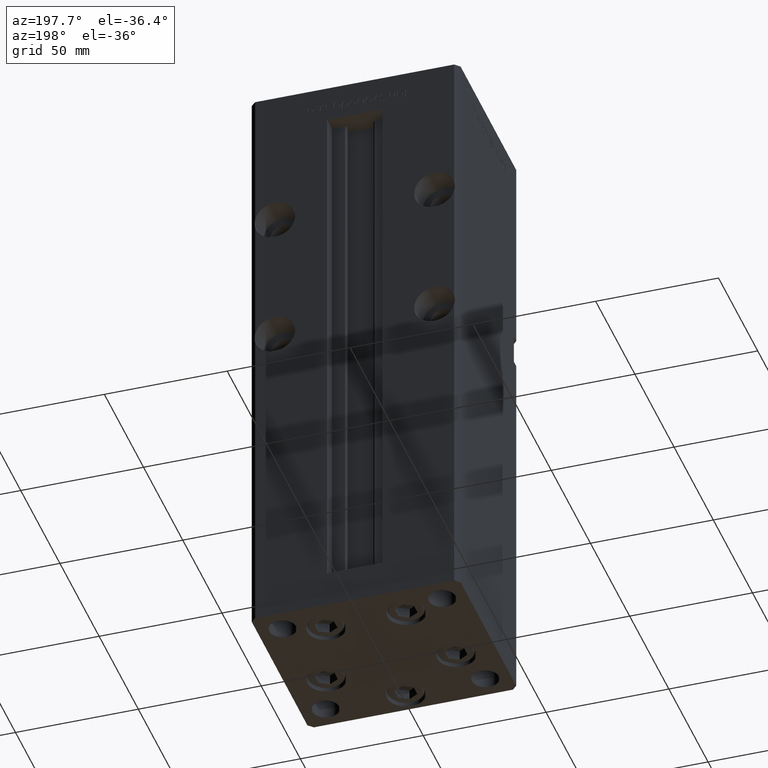
[diagram: clean part render]
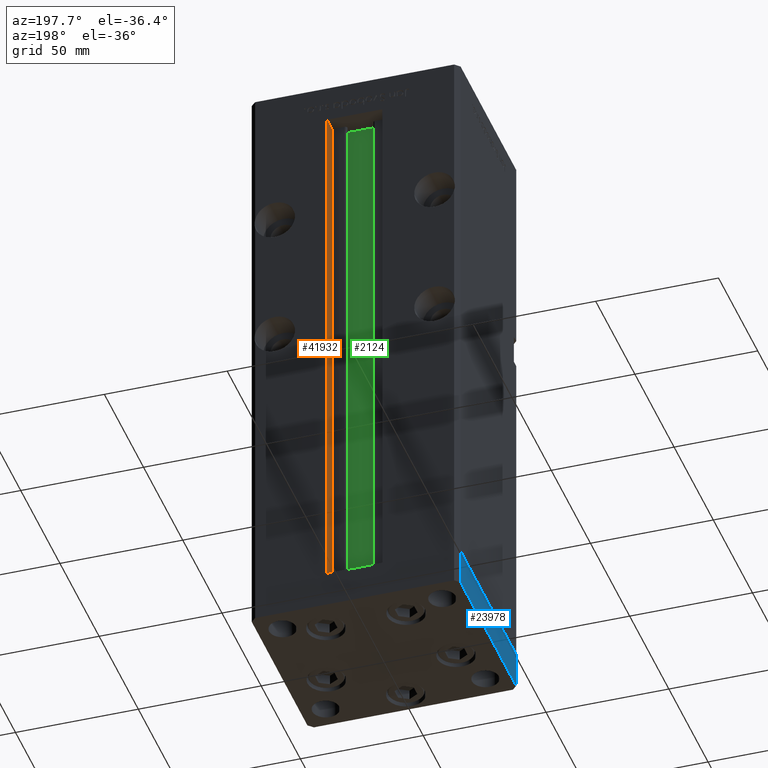
[diagram: same view with three faces highlighted in distinct colors, each labeled with its STEP entity id]
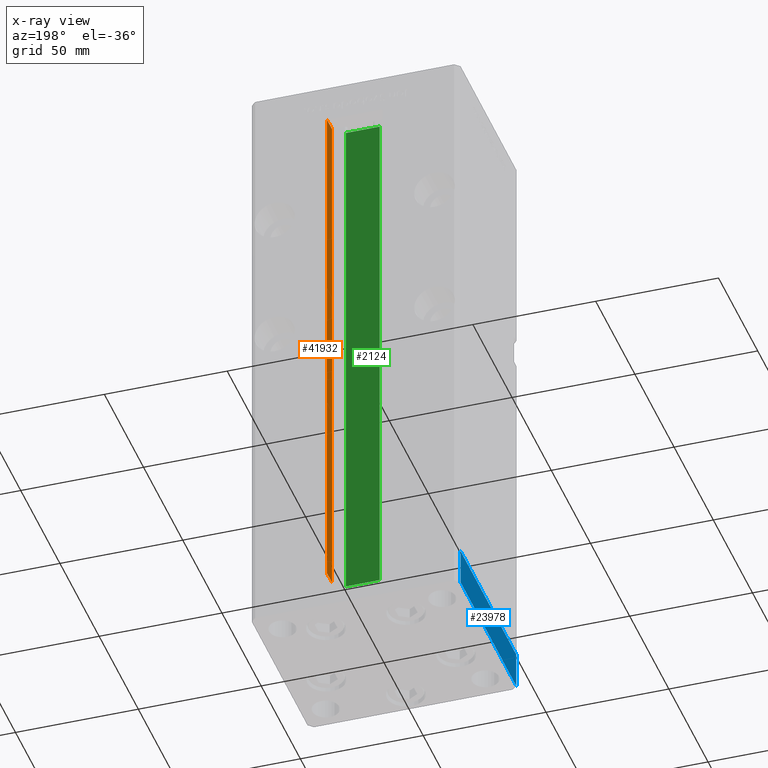
[diagram: x-ray of the same camera — body ghosted, the three highlighted faces saturated]
A machine part, auxiliary view with three faces highlighted in distinct colors.
The next image is the same camera in x-ray (body ghosted, the three faces saturated) — at least one of them is partly hidden behind the body in this view.
Their STEP definitions:

[orange] entity #41932 — the highlighted planar face has unit normal (1, 0, 0).
#1655 = ORIENTED_EDGE ( 'NONE', *, *, #25145, .F. ) ;
#2449 = LINE ( 'NONE', #18824, #26609 ) ;
#2596 = CARTESIAN_POINT ( 'NONE',  ( 11.24999999999999822, 31.00000000000000000, 0.000000000000000000 ) ) ;
#3232 = DIRECTION ( 'NONE',  ( 0.000000000000000000, 0.000000000000000000, -1.000000000000000000 ) ) ;
#8670 = VECTOR ( 'NONE', #52286, 1000.000000000000000 ) ;
#9684 = ORIENTED_EDGE ( 'NONE', *, *, #10732, .F. ) ;
#10732 = EDGE_CURVE ( 'NONE', #36285, #30588, #30585, .T. ) ;
#14245 = VECTOR ( 'NONE', #45454, 1000.000000000000000 ) ;
#14348 = CARTESIAN_POINT ( 'NONE',  ( 11.24999999999999112, 37.50000000000000000, 218.5000000000000000 ) ) ;
#14792 = DIRECTION ( 'NONE',  ( 0.000000000000000000, 1.000000000000000000, 0.000000000000000000 ) ) ;
#15836 = DIRECTION ( 'NONE',  ( 1.000000000000000000, -0.000000000000000000, 0.000000000000000000 ) ) ;
#16028 = ORIENTED_EDGE ( 'NONE', *, *, #30733, .F. ) ;
#16627 = CARTESIAN_POINT ( 'NONE',  ( 11.24999999999999822, 31.00000000000000000, 0.000000000000000000 ) ) ;
#17030 = CARTESIAN_POINT ( 'NONE',  ( 11.24999999999999822, 31.00000000000000000, 218.5000000000000000 ) ) ;
#18824 = CARTESIAN_POINT ( 'NONE',  ( 11.24999999999999822, 31.00000000000000000, 0.000000000000000000 ) ) ;
#19440 = CARTESIAN_POINT ( 'NONE',  ( 11.24999999999999822, 37.50000000000000000, 0.000000000000000000 ) ) ;
#22471 = DIRECTION ( 'NONE',  ( -0.000000000000000000, -0.000000000000000000, 1.000000000000000000 ) ) ;
#25145 = EDGE_CURVE ( 'NONE', #33171, #36285, #2449, .T. ) ;
#26609 = VECTOR ( 'NONE', #14792, 1000.000000000000000 ) ;
#28303 = CARTESIAN_POINT ( 'NONE',  ( 11.24999999999999822, 0.000000000000000000, 218.5000000000000000 ) ) ;
#30585 = LINE ( 'NONE', #38660, #14245 ) ;
#30588 = VERTEX_POINT ( 'NONE', #14348 ) ;
#30733 = EDGE_CURVE ( 'NONE', #30588, #32901, #44190, .T. ) ;
#31998 = CARTESIAN_POINT ( 'NONE',  ( 11.24999999999999822, 31.00000000000000000, 0.000000000000000000 ) ) ;
#32901 = VERTEX_POINT ( 'NONE', #17030 ) ;
#33171 = VERTEX_POINT ( 'NONE', #16627 ) ;
#36285 = VERTEX_POINT ( 'NONE', #19440 ) ;
#38225 = VECTOR ( 'NONE', #22471, 1000.000000000000000 ) ;
#38660 = CARTESIAN_POINT ( 'NONE',  ( 11.24999999999999822, 37.50000000000000000, 0.000000000000000000 ) ) ;
#41637 = AXIS2_PLACEMENT_3D ( 'NONE', #31998, #15836, #3232 ) ;
#41932 = ADVANCED_FACE ( 'NONE', ( #48674 ), #48932, .F. ) ;
#42468 = EDGE_LOOP ( 'NONE', ( #9684, #1655, #49193, #16028 ) ) ;
#43725 = LINE ( 'NONE', #2596, #38225 ) ;
#44190 = LINE ( 'NONE', #28303, #8670 ) ;
#45454 = DIRECTION ( 'NONE',  ( -0.000000000000000000, -0.000000000000000000, 1.000000000000000000 ) ) ;
#48441 = EDGE_CURVE ( 'NONE', #33171, #32901, #43725, .T. ) ;
#48674 = FACE_OUTER_BOUND ( 'NONE', #42468, .T. ) ;
#48932 = PLANE ( 'NONE',  #41637 ) ;
#49193 = ORIENTED_EDGE ( 'NONE', *, *, #48441, .T. ) ;
#52286 = DIRECTION ( 'NONE',  ( -0.000000000000000000, -1.000000000000000000, 0.000000000000000000 ) ) ;

[blue] entity #23978 — the highlighted planar face has unit normal (-1, -0, 0).
#645 = LINE ( 'NONE', #21333, #19029 ) ;
#1615 = CARTESIAN_POINT ( 'NONE',  ( 42.50000000000000711, -35.50000000000000000, 0.000000000000000000 ) ) ;
#3400 = CARTESIAN_POINT ( 'NONE',  ( 42.49999999999992895, 35.50000000000000000, 0.000000000000000000 ) ) ;
#4054 = DIRECTION ( 'NONE',  ( 1.000000000000000000, 1.172770800660376741E-15, -0.000000000000000000 ) ) ;
#5462 = VERTEX_POINT ( 'NONE', #1615 ) ;
#5848 = VERTEX_POINT ( 'NONE', #3400 ) ;
#8076 = CARTESIAN_POINT ( 'NONE',  ( 42.50000000000000711, -35.50000000000000000, 0.000000000000000000 ) ) ;
#14905 = VECTOR ( 'NONE', #20999, 1000.000000000000000 ) ;
#16139 = CARTESIAN_POINT ( 'NONE',  ( 42.50000000000000711, -35.50000000000000000, -15.00000000000000000 ) ) ;
#16767 = CARTESIAN_POINT ( 'NONE',  ( 42.49999999999992895, 35.50000000000000000, -15.00000000000000000 ) ) ;
#16841 = ORIENTED_EDGE ( 'NONE', *, *, #32819, .T. ) ;
#19029 = VECTOR ( 'NONE', #25080, 1000.000000000000000 ) ;
#20543 = DIRECTION ( 'NONE',  ( 0.000000000000000000, 0.000000000000000000, 1.000000000000000000 ) ) ;
#20692 = LINE ( 'NONE', #8076, #40635 ) ;
#20865 = ORIENTED_EDGE ( 'NONE', *, *, #53186, .T. ) ;
#20999 = DIRECTION ( 'NONE',  ( 0.000000000000000000, 0.000000000000000000, 1.000000000000000000 ) ) ;
#21333 = CARTESIAN_POINT ( 'NONE',  ( 42.50000000000000711, -35.50000000000000000, -15.00000000000000000 ) ) ;
#23240 = ORIENTED_EDGE ( 'NONE', *, *, #38840, .F. ) ;
#23978 = ADVANCED_FACE ( 'NONE', ( #53020 ), #48714, .T. ) ;
#24820 = ORIENTED_EDGE ( 'NONE', *, *, #36673, .F. ) ;
#25080 = DIRECTION ( 'NONE',  ( -1.172770800660376741E-15, 1.000000000000000000, 0.000000000000000000 ) ) ;
#32819 = EDGE_CURVE ( 'NONE', #46665, #45436, #645, .T. ) ;
#33390 = LINE ( 'NONE', #38217, #14905 ) ;
#36673 = EDGE_CURVE ( 'NONE', #5462, #5848, #20692, .T. ) ;
#37769 = LINE ( 'NONE', #16767, #43555 ) ;
#38217 = CARTESIAN_POINT ( 'NONE',  ( 42.50000000000000711, -35.50000000000000000, -15.00000000000000000 ) ) ;
#38696 = CARTESIAN_POINT ( 'NONE',  ( 42.49999999999992895, 35.50000000000000000, -15.00000000000000000 ) ) ;
#38840 = EDGE_CURVE ( 'NONE', #46665, #5462, #33390, .T. ) ;
#40125 = EDGE_LOOP ( 'NONE', ( #24820, #23240, #16841, #20865 ) ) ;
#40635 = VECTOR ( 'NONE', #44905, 1000.000000000000000 ) ;
#41006 = CARTESIAN_POINT ( 'NONE',  ( 42.50000000000000711, -35.50000000000000000, -15.00000000000000000 ) ) ;
#43555 = VECTOR ( 'NONE', #20543, 1000.000000000000000 ) ;
#44905 = DIRECTION ( 'NONE',  ( -1.172770800660376741E-15, 1.000000000000000000, 0.000000000000000000 ) ) ;
#44920 = DIRECTION ( 'NONE',  ( -1.172770800660376741E-15, 1.000000000000000000, 0.000000000000000000 ) ) ;
#45436 = VERTEX_POINT ( 'NONE', #38696 ) ;
#45480 = AXIS2_PLACEMENT_3D ( 'NONE', #16139, #4054, #44920 ) ;
#46665 = VERTEX_POINT ( 'NONE', #41006 ) ;
#48714 = PLANE ( 'NONE',  #45480 ) ;
#53020 = FACE_OUTER_BOUND ( 'NONE', #40125, .T. ) ;
#53186 = EDGE_CURVE ( 'NONE', #45436, #5848, #37769, .T. ) ;

[green] entity #2124 — the highlighted planar face has unit normal (0, -1, 0).
#803 = CARTESIAN_POINT ( 'NONE',  ( 6.876153656360465938, 26.99999999999986855, 0.000000000000000000 ) ) ;
#1563 = CARTESIAN_POINT ( 'NONE',  ( 0.000000000000000000, 26.99999999999986855, 218.5000000000000000 ) ) ;
#2124 = ADVANCED_FACE ( 'NONE', ( #46237 ), #12152, .F. ) ;
#5514 = VECTOR ( 'NONE', #41902, 1000.000000000000000 ) ;
#5649 = ORIENTED_EDGE ( 'NONE', *, *, #24611, .F. ) ;
#5807 = EDGE_CURVE ( 'NONE', #9907, #18858, #14157, .T. ) ;
#6717 = CARTESIAN_POINT ( 'NONE',  ( -6.876153656360465938, 26.99999999999986855, 0.000000000000000000 ) ) ;
#7451 = ORIENTED_EDGE ( 'NONE', *, *, #5807, .T. ) ;
#7971 = DIRECTION ( 'NONE',  ( -0.000000000000000000, -0.000000000000000000, 1.000000000000000000 ) ) ;
#9756 = CARTESIAN_POINT ( 'NONE',  ( -6.876153656360465938, 26.99999999999986855, 218.5000000000000000 ) ) ;
#9907 = VERTEX_POINT ( 'NONE', #6717 ) ;
#9928 = VECTOR ( 'NONE', #43200, 1000.000000000000000 ) ;
#12152 = PLANE ( 'NONE',  #37306 ) ;
#12729 = CARTESIAN_POINT ( 'NONE',  ( 6.876153656360465938, 26.99999999999986855, 0.000000000000000000 ) ) ;
#13281 = EDGE_CURVE ( 'NONE', #9907, #32839, #52192, .T. ) ;
#14157 = LINE ( 'NONE', #30571, #9928 ) ;
#14725 = ORIENTED_EDGE ( 'NONE', *, *, #41440, .F. ) ;
#14988 = VERTEX_POINT ( 'NONE', #18944 ) ;
#15314 = CARTESIAN_POINT ( 'NONE',  ( 6.876153656360465938, 26.99999999999986855, 0.000000000000000000 ) ) ;
#17168 = DIRECTION ( 'NONE',  ( 1.000000000000000000, -0.000000000000000000, -0.000000000000000000 ) ) ;
#17449 = DIRECTION ( 'NONE',  ( 0.000000000000000000, -1.000000000000000000, -0.000000000000000000 ) ) ;
#18858 = VERTEX_POINT ( 'NONE', #9756 ) ;
#18944 = CARTESIAN_POINT ( 'NONE',  ( 6.876153656360465938, 26.99999999999986855, 218.5000000000000000 ) ) ;
#20585 = CARTESIAN_POINT ( 'NONE',  ( 6.876153656360465938, 26.99999999999986855, 0.000000000000000000 ) ) ;
#24611 = EDGE_CURVE ( 'NONE', #32839, #14988, #29188, .T. ) ;
#28316 = VECTOR ( 'NONE', #7971, 1000.000000000000000 ) ;
#29188 = LINE ( 'NONE', #20585, #28316 ) ;
#30571 = CARTESIAN_POINT ( 'NONE',  ( -6.876153656360465938, 26.99999999999986855, 0.000000000000000000 ) ) ;
#32839 = VERTEX_POINT ( 'NONE', #12729 ) ;
#33841 = LINE ( 'NONE', #1563, #5514 ) ;
#34184 = EDGE_LOOP ( 'NONE', ( #5649, #36045, #7451, #14725 ) ) ;
#36045 = ORIENTED_EDGE ( 'NONE', *, *, #13281, .F. ) ;
#37306 = AXIS2_PLACEMENT_3D ( 'NONE', #803, #17449, #45965 ) ;
#41440 = EDGE_CURVE ( 'NONE', #14988, #18858, #33841, .T. ) ;
#41902 = DIRECTION ( 'NONE',  ( -1.000000000000000000, 0.000000000000000000, 0.000000000000000000 ) ) ;
#43200 = DIRECTION ( 'NONE',  ( -0.000000000000000000, -0.000000000000000000, 1.000000000000000000 ) ) ;
#43517 = VECTOR ( 'NONE', #17168, 1000.000000000000000 ) ;
#45965 = DIRECTION ( 'NONE',  ( 0.000000000000000000, 0.000000000000000000, -1.000000000000000000 ) ) ;
#46237 = FACE_OUTER_BOUND ( 'NONE', #34184, .T. ) ;
#52192 = LINE ( 'NONE', #15314, #43517 ) ;